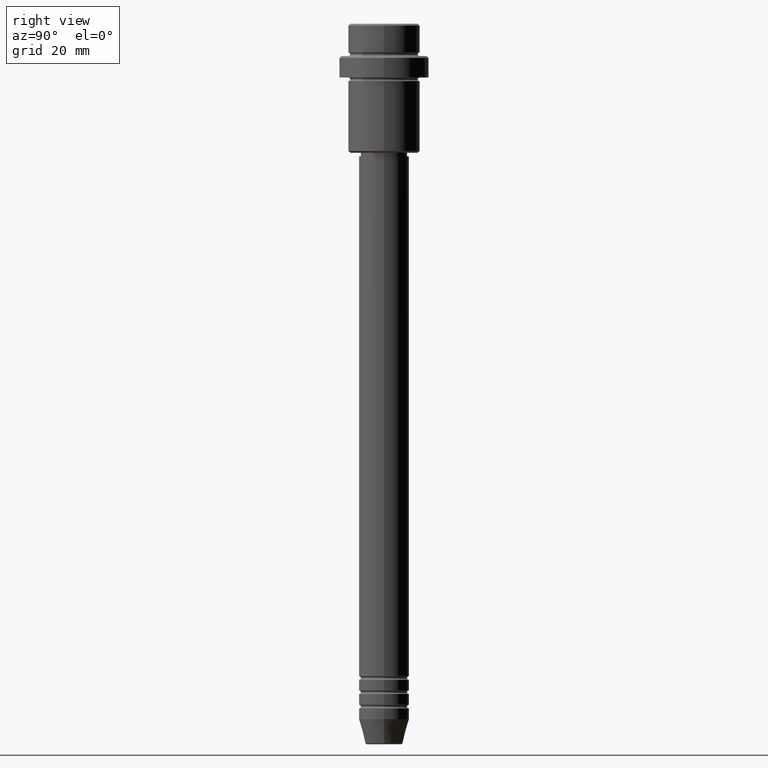
[diagram: clean part render]
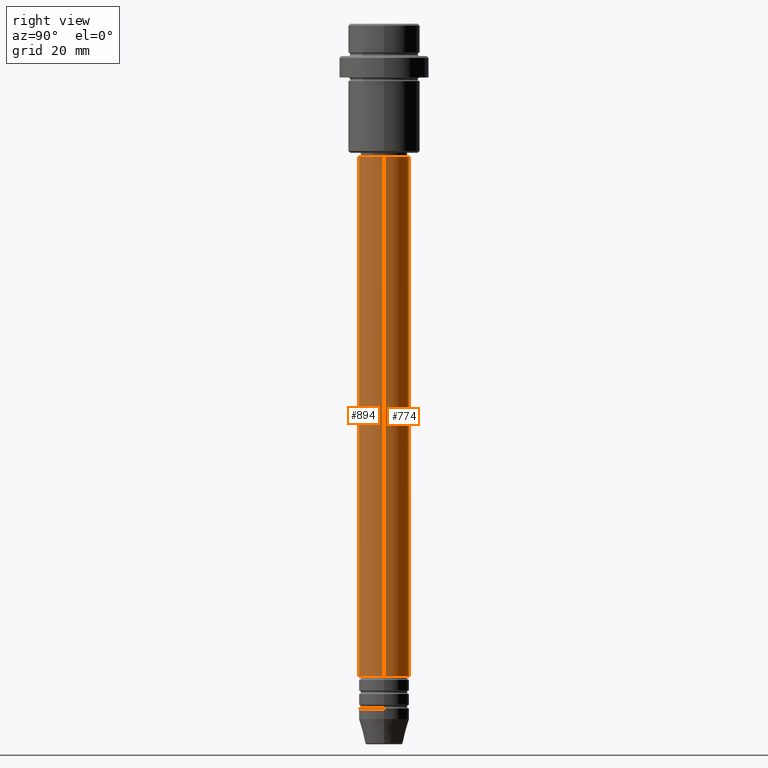
[diagram: same view with one multi-face feature highlighted, each face labeled with its STEP entity id]
A machine part, right view. The highlighted faces form ONE feature: a constant-radius fillet chain: 2 tangent blend faces with common blend radius 7 mm. The faces share edges in the B-rep.
Their STEP definitions:
[1] entity #774 (Cylinder):
#19 = DIRECTION ( 'NONE',  ( -0.000000000000000000, -0.000000000000000000, 1.000000000000000000 ) ) ;
#44 = CARTESIAN_POINT ( 'NONE',  ( -7.000000000000000000, 8.572527594031473190E-16, -37.00000000000000711 ) ) ;
#85 = ORIENTED_EDGE ( 'NONE', *, *, #1106, .T. ) ;
#163 = DIRECTION ( 'NONE',  ( 1.000000000000000000, 0.000000000000000000, 0.000000000000000000 ) ) ;
#167 = ORIENTED_EDGE ( 'NONE', *, *, #652, .F. ) ;
#170 = CARTESIAN_POINT ( 'NONE',  ( -7.000000000000000000, 8.572527594031473190E-16, -181.9999999999998863 ) ) ;
#174 = VERTEX_POINT ( 'NONE', #44 ) ;
#199 = CARTESIAN_POINT ( 'NONE',  ( 7.000000000000000000, 0.000000000000000000, -181.9999999999998863 ) ) ;
#249 = EDGE_LOOP ( 'NONE', ( #511, #85, #898, #167 ) ) ;
#266 = VECTOR ( 'NONE', #1170, 1000.000000000000000 ) ;
#269 = CARTESIAN_POINT ( 'NONE',  ( 0.000000000000000000, 0.000000000000000000, -37.00000000000000711 ) ) ;
#311 = VERTEX_POINT ( 'NONE', #170 ) ;
#349 = DIRECTION ( 'NONE',  ( -0.000000000000000000, -0.000000000000000000, 1.000000000000000000 ) ) ;
#352 = EDGE_CURVE ( 'NONE', #851, #174, #653, .T. ) ;
#392 = AXIS2_PLACEMENT_3D ( 'NONE', #1123, #349, #1014 ) ;
#443 = CYLINDRICAL_SURFACE ( 'NONE', #1091, 7.000000000000000000 ) ;
#468 = DIRECTION ( 'NONE',  ( -0.000000000000000000, -0.000000000000000000, 1.000000000000000000 ) ) ;
#511 = ORIENTED_EDGE ( 'NONE', *, *, #1253, .T. ) ;
#531 = CIRCLE ( 'NONE', #392, 7.000000000000000000 ) ;
#560 = LINE ( 'NONE', #992, #892 ) ;
#629 = CARTESIAN_POINT ( 'NONE',  ( 7.000000000000000000, 0.000000000000000000, 0.000000000000000000 ) ) ;
#652 = EDGE_CURVE ( 'NONE', #1015, #851, #852, .T. ) ;
#653 = CIRCLE ( 'NONE', #1080, 7.000000000000000000 ) ;
#655 = CARTESIAN_POINT ( 'NONE',  ( 0.000000000000000000, 0.000000000000000000, 0.000000000000000000 ) ) ;
#670 = DIRECTION ( 'NONE',  ( 1.000000000000000000, 0.000000000000000000, 0.000000000000000000 ) ) ;
#774 = ADVANCED_FACE ( 'NONE', ( #986 ), #443, .T. ) ;
#851 = VERTEX_POINT ( 'NONE', #1367 ) ;
#852 = LINE ( 'NONE', #629, #266 ) ;
#874 = DIRECTION ( 'NONE',  ( -0.000000000000000000, -0.000000000000000000, 1.000000000000000000 ) ) ;
#892 = VECTOR ( 'NONE', #19, 1000.000000000000000 ) ;
#898 = ORIENTED_EDGE ( 'NONE', *, *, #352, .F. ) ;
#986 = FACE_OUTER_BOUND ( 'NONE', #249, .T. ) ;
#992 = CARTESIAN_POINT ( 'NONE',  ( -7.000000000000000000, 8.572527594031473190E-16, 0.000000000000000000 ) ) ;
#1014 = DIRECTION ( 'NONE',  ( 1.000000000000000000, 0.000000000000000000, 0.000000000000000000 ) ) ;
#1015 = VERTEX_POINT ( 'NONE', #199 ) ;
#1080 = AXIS2_PLACEMENT_3D ( 'NONE', #269, #468, #163 ) ;
#1091 = AXIS2_PLACEMENT_3D ( 'NONE', #655, #874, #670 ) ;
#1106 = EDGE_CURVE ( 'NONE', #311, #174, #560, .T. ) ;
#1123 = CARTESIAN_POINT ( 'NONE',  ( 0.000000000000000000, 0.000000000000000000, -181.9999999999998863 ) ) ;
#1170 = DIRECTION ( 'NONE',  ( -0.000000000000000000, -0.000000000000000000, 1.000000000000000000 ) ) ;
#1253 = EDGE_CURVE ( 'NONE', #1015, #311, #531, .T. ) ;
#1367 = CARTESIAN_POINT ( 'NONE',  ( 7.000000000000000000, 0.000000000000000000, -37.00000000000000711 ) ) ;
[2] entity #894 (Cylinder):
#19 = DIRECTION ( 'NONE',  ( -0.000000000000000000, -0.000000000000000000, 1.000000000000000000 ) ) ;
#28 = CIRCLE ( 'NONE', #385, 7.000000000000000000 ) ;
#31 = FACE_OUTER_BOUND ( 'NONE', #932, .T. ) ;
#44 = CARTESIAN_POINT ( 'NONE',  ( -7.000000000000000000, 8.572527594031473190E-16, -37.00000000000000711 ) ) ;
#83 = DIRECTION ( 'NONE',  ( 1.000000000000000000, 0.000000000000000000, 0.000000000000000000 ) ) ;
#139 = DIRECTION ( 'NONE',  ( -0.000000000000000000, -0.000000000000000000, 1.000000000000000000 ) ) ;
#170 = CARTESIAN_POINT ( 'NONE',  ( -7.000000000000000000, 8.572527594031473190E-16, -181.9999999999998863 ) ) ;
#174 = VERTEX_POINT ( 'NONE', #44 ) ;
#199 = CARTESIAN_POINT ( 'NONE',  ( 7.000000000000000000, 0.000000000000000000, -181.9999999999998863 ) ) ;
#256 = ORIENTED_EDGE ( 'NONE', *, *, #1106, .F. ) ;
#266 = VECTOR ( 'NONE', #1170, 1000.000000000000000 ) ;
#287 = DIRECTION ( 'NONE',  ( -0.000000000000000000, -0.000000000000000000, 1.000000000000000000 ) ) ;
#311 = VERTEX_POINT ( 'NONE', #170 ) ;
#335 = AXIS2_PLACEMENT_3D ( 'NONE', #1057, #287, #83 ) ;
#380 = CARTESIAN_POINT ( 'NONE',  ( 0.000000000000000000, 0.000000000000000000, 0.000000000000000000 ) ) ;
#385 = AXIS2_PLACEMENT_3D ( 'NONE', #1053, #1392, #427 ) ;
#408 = ORIENTED_EDGE ( 'NONE', *, *, #975, .T. ) ;
#427 = DIRECTION ( 'NONE',  ( 1.000000000000000000, 0.000000000000000000, 0.000000000000000000 ) ) ;
#430 = EDGE_CURVE ( 'NONE', #174, #851, #28, .T. ) ;
#560 = LINE ( 'NONE', #992, #892 ) ;
#629 = CARTESIAN_POINT ( 'NONE',  ( 7.000000000000000000, 0.000000000000000000, 0.000000000000000000 ) ) ;
#650 = ORIENTED_EDGE ( 'NONE', *, *, #652, .T. ) ;
#652 = EDGE_CURVE ( 'NONE', #1015, #851, #852, .T. ) ;
#715 = DIRECTION ( 'NONE',  ( 1.000000000000000000, 0.000000000000000000, 0.000000000000000000 ) ) ;
#851 = VERTEX_POINT ( 'NONE', #1367 ) ;
#852 = LINE ( 'NONE', #629, #266 ) ;
#892 = VECTOR ( 'NONE', #19, 1000.000000000000000 ) ;
#894 = ADVANCED_FACE ( 'NONE', ( #31 ), #1347, .T. ) ;
#932 = EDGE_LOOP ( 'NONE', ( #256, #408, #650, #972 ) ) ;
#962 = CIRCLE ( 'NONE', #335, 7.000000000000000000 ) ;
#972 = ORIENTED_EDGE ( 'NONE', *, *, #430, .F. ) ;
#975 = EDGE_CURVE ( 'NONE', #311, #1015, #962, .T. ) ;
#992 = CARTESIAN_POINT ( 'NONE',  ( -7.000000000000000000, 8.572527594031473190E-16, 0.000000000000000000 ) ) ;
#1015 = VERTEX_POINT ( 'NONE', #199 ) ;
#1053 = CARTESIAN_POINT ( 'NONE',  ( 0.000000000000000000, 0.000000000000000000, -37.00000000000000711 ) ) ;
#1057 = CARTESIAN_POINT ( 'NONE',  ( 0.000000000000000000, 0.000000000000000000, -181.9999999999998863 ) ) ;
#1106 = EDGE_CURVE ( 'NONE', #311, #174, #560, .T. ) ;
#1170 = DIRECTION ( 'NONE',  ( -0.000000000000000000, -0.000000000000000000, 1.000000000000000000 ) ) ;
#1233 = AXIS2_PLACEMENT_3D ( 'NONE', #380, #139, #715 ) ;
#1347 = CYLINDRICAL_SURFACE ( 'NONE', #1233, 7.000000000000000000 ) ;
#1367 = CARTESIAN_POINT ( 'NONE',  ( 7.000000000000000000, 0.000000000000000000, -37.00000000000000711 ) ) ;
#1392 = DIRECTION ( 'NONE',  ( -0.000000000000000000, -0.000000000000000000, 1.000000000000000000 ) ) ;